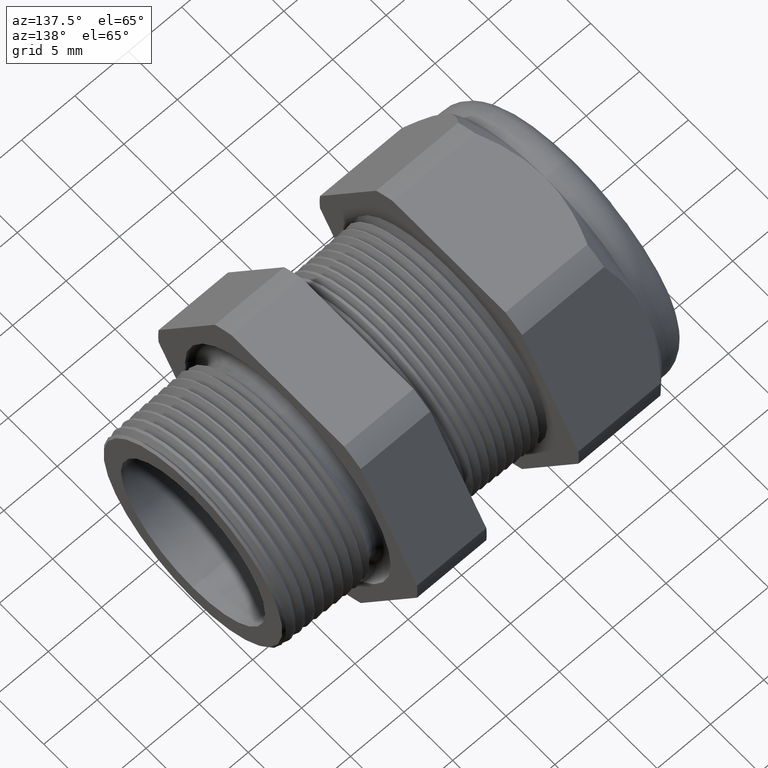
[diagram: clean part render]
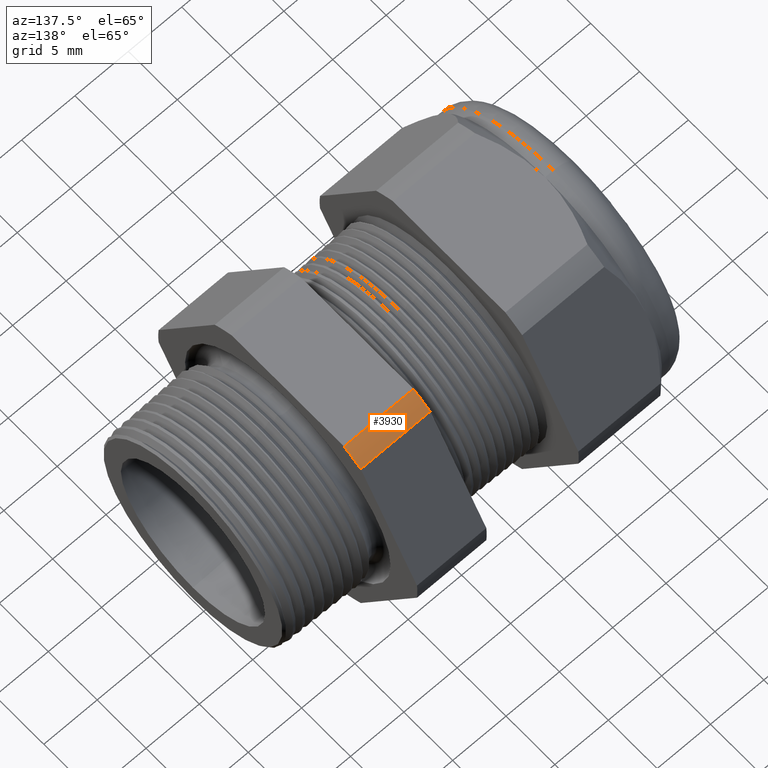
[diagram: same view with one face highlighted and labeled with its STEP entity id]
A machine part, auxiliary view. The second image highlights one B-rep face of the part: STEP entity #3930.
In plain terms, the highlighted cylindrical surface (partial cylindrical patch) has radius 13.2512 mm, axis along (-1, 0, 0).
Its self-contained STEP definition (entity closure, byte-faithful):
#1708 = CARTESIAN_POINT ( 'NONE',  ( -0.3100000000000000000, 0.0000000000000000000, 0.0000000000000000000 ) ) ;
#1709 = AXIS2_PLACEMENT_3D ( 'NONE', #1708, #1771, #1770 ) ;
#1710 = CIRCLE ( 'NONE', #1709, 0.5217000000000000500 ) ;
#1711 = CARTESIAN_POINT ( 'NONE',  ( -0.3100000000000000000, 0.2938165587564947600, 0.4310947921287048800 ) ) ;
#1759 = CARTESIAN_POINT ( 'NONE',  ( -0.5659055118110235500, 0.2938165587564947600, 0.4310947921287048800 ) ) ;
#1769 = CARTESIAN_POINT ( 'NONE',  ( -0.3100000000000000000, 0.2264307620443832800, 0.4699999999999999200 ) ) ;
#1770 = DIRECTION ( 'NONE',  ( 0.0000000000000000000, 0.0000000000000000000, -1.000000000000000000 ) ) ;
#1771 = DIRECTION ( 'NONE',  ( 1.000000000000000000, 0.0000000000000000000, 0.0000000000000000000 ) ) ;
#1847 = DIRECTION ( 'NONE',  ( 0.0000000000000000000, 0.0000000000000000000, 1.000000000000000000 ) ) ;
#1848 = DIRECTION ( 'NONE',  ( -1.000000000000000000, 0.0000000000000000000, 0.0000000000000000000 ) ) ;
#1849 = CARTESIAN_POINT ( 'NONE',  ( -0.5659055118110235500, 0.0000000000000000000, 0.0000000000000000000 ) ) ;
#1850 = AXIS2_PLACEMENT_3D ( 'NONE', #1849, #1848, #1847 ) ;
#1851 = CIRCLE ( 'NONE', #1850, 0.5217000000000000500 ) ;
#1853 = CARTESIAN_POINT ( 'NONE',  ( -0.5659055118110235500, 0.2264307620443832800, 0.4699999999999999200 ) ) ;
#1916 = DIRECTION ( 'NONE',  ( -1.000000000000000000, 0.0000000000000000000, 0.0000000000000000000 ) ) ;
#1917 = VECTOR ( 'NONE', #1916, 39.37007874015748100 ) ;
#1918 = CARTESIAN_POINT ( 'NONE',  ( 0.03999999999999984800, 0.2264307620443832800, 0.4699999999999999200 ) ) ;
#1919 = LINE ( 'NONE', #1918, #1917 ) ;
#1920 = DIRECTION ( 'NONE',  ( 0.0000000000000000000, 0.0000000000000000000, 1.000000000000000000 ) ) ;
#1921 = DIRECTION ( 'NONE',  ( -1.000000000000000000, 0.0000000000000000000, 0.0000000000000000000 ) ) ;
#1922 = CARTESIAN_POINT ( 'NONE',  ( 0.03999999999999984800, 0.0000000000000000000, 0.0000000000000000000 ) ) ;
#1923 = AXIS2_PLACEMENT_3D ( 'NONE', #1922, #1921, #1920 ) ;
#1924 = CYLINDRICAL_SURFACE ( 'NONE', #1923, 0.5217000000000000500 ) ;
#1925 = FACE_OUTER_BOUND ( 'NONE', #3931, .T. ) ;
#1926 = DIRECTION ( 'NONE',  ( -1.000000000000000000, 0.0000000000000000000, 0.0000000000000000000 ) ) ;
#1927 = VECTOR ( 'NONE', #1926, 39.37007874015748100 ) ;
#1928 = CARTESIAN_POINT ( 'NONE',  ( 0.03999999999999984800, 0.2938165587564947600, 0.4310947921287048800 ) ) ;
#1929 = LINE ( 'NONE', #1928, #1927 ) ;
#3835 = VERTEX_POINT ( 'NONE', #1711 ) ;
#3837 = EDGE_CURVE ( 'NONE', #3835, #3838, #1710, .T. ) ;
#3838 = VERTEX_POINT ( 'NONE', #1769 ) ;
#3845 = VERTEX_POINT ( 'NONE', #1759 ) ;
#3899 = VERTEX_POINT ( 'NONE', #1853 ) ;
#3901 = EDGE_CURVE ( 'NONE', #3899, #3845, #1851, .T. ) ;
#3928 = EDGE_CURVE ( 'NONE', #3835, #3845, #1929, .T. ) ;
#3930 = ADVANCED_FACE ( 'NONE', ( #1925 ), #1924, .T. ) ;
#3931 = EDGE_LOOP ( 'NONE', ( #3932, #3933, #3934, #3936 ) ) ;
#3932 = ORIENTED_EDGE ( 'NONE', *, *, #3928, .T. ) ;
#3933 = ORIENTED_EDGE ( 'NONE', *, *, #3901, .F. ) ;
#3934 = ORIENTED_EDGE ( 'NONE', *, *, #3935, .F. ) ;
#3935 = EDGE_CURVE ( 'NONE', #3838, #3899, #1919, .T. ) ;
#3936 = ORIENTED_EDGE ( 'NONE', *, *, #3837, .F. ) ;